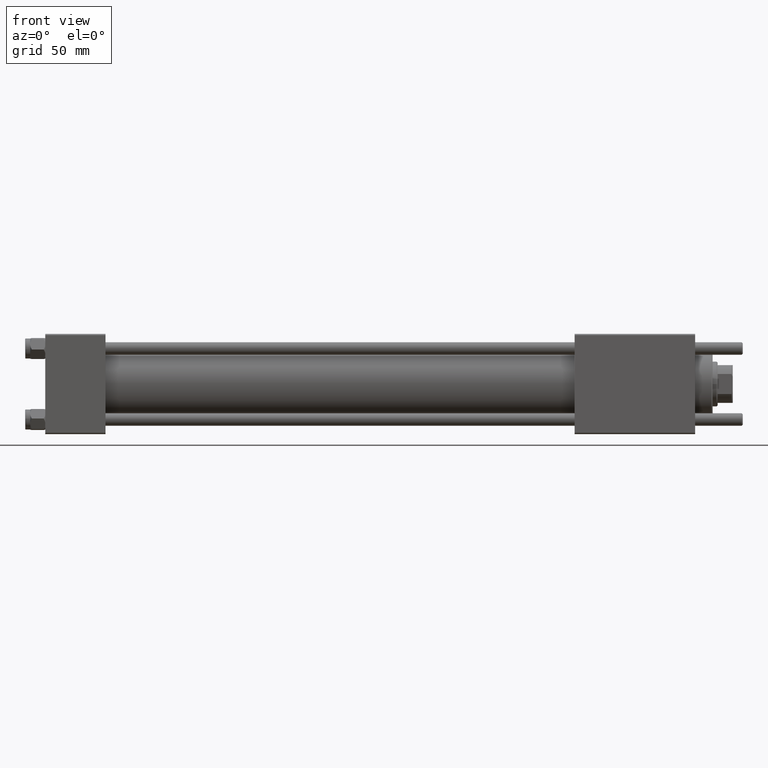
[diagram: clean part render]
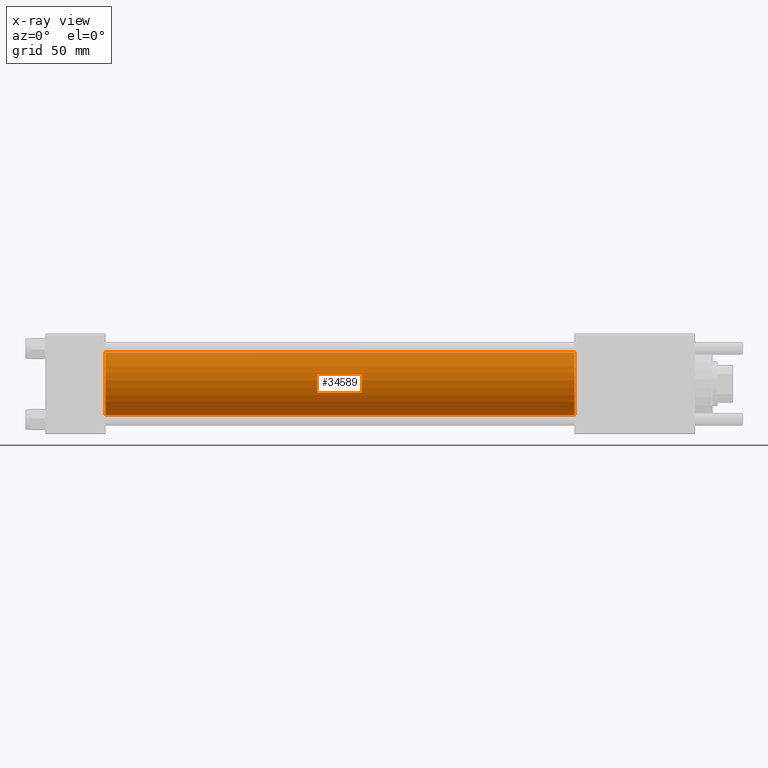
[diagram: x-ray — body ghosted, one internal face saturated and labeled with its STEP entity id]
A machine part, front view, then the same camera in x-ray: the body is ghosted and one INTERNAL B-rep face — a face not visible from any outside direction — is saturated and labeled: STEP entity #34589.
In plain terms, the highlighted cylindrical surface (edge-blend (fillet) strip) has radius 12.5 mm, axis along (-1, -0, -0).
Its self-contained STEP definition (entity closure, byte-faithful):
#1532 = VERTEX_POINT ( 'NONE', #33954 ) ;
#8675 = EDGE_CURVE ( 'NONE', #32296, #11196, #25250, .T. ) ;
#9505 = CARTESIAN_POINT ( 'NONE',  ( 211.0000000000000000, -2.602085213965210642E-15, 12.49999999999999645 ) ) ;
#9685 = AXIS2_PLACEMENT_3D ( 'NONE', #33429, #29130, #50910 ) ;
#11171 = LINE ( 'NONE', #49894, #37004 ) ;
#11187 = EDGE_CURVE ( 'NONE', #47781, #32296, #40188, .T. ) ;
#11196 = VERTEX_POINT ( 'NONE', #35886 ) ;
#11231 = ORIENTED_EDGE ( 'NONE', *, *, #55899, .T. ) ;
#11595 = DIRECTION ( 'NONE',  ( 0.000000000000000000, 0.000000000000000000, -1.000000000000000000 ) ) ;
#13068 = DIRECTION ( 'NONE',  ( 0.000000000000000000, 0.000000000000000000, 1.000000000000000000 ) ) ;
#13358 = CYLINDRICAL_SURFACE ( 'NONE', #21760, 12.49999999999999645 ) ;
#14168 = ORIENTED_EDGE ( 'NONE', *, *, #11187, .F. ) ;
#14223 = CIRCLE ( 'NONE', #51796, 12.49999999999999645 ) ;
#19782 = DIRECTION ( 'NONE',  ( -1.000000000000000000, -0.000000000000000000, -0.000000000000000000 ) ) ;
#21760 = AXIS2_PLACEMENT_3D ( 'NONE', #26285, #34593, #13068 ) ;
#23583 = EDGE_CURVE ( 'NONE', #1532, #11196, #11171, .T. ) ;
#25250 = CIRCLE ( 'NONE', #9685, 12.49999999999999645 ) ;
#26285 = CARTESIAN_POINT ( 'NONE',  ( 211.0000000000000000, -2.602085213965210642E-15, 0.000000000000000000 ) ) ;
#26723 = DIRECTION ( 'NONE',  ( -1.000000000000000000, -0.000000000000000000, -0.000000000000000000 ) ) ;
#29014 = CARTESIAN_POINT ( 'NONE',  ( 24.00000000000000000, -2.602085213965210642E-15, 12.49999999999999645 ) ) ;
#29130 = DIRECTION ( 'NONE',  ( 1.000000000000000000, 0.000000000000000000, 0.000000000000000000 ) ) ;
#31605 = ORIENTED_EDGE ( 'NONE', *, *, #23583, .T. ) ;
#32296 = VERTEX_POINT ( 'NONE', #29014 ) ;
#33391 = CARTESIAN_POINT ( 'NONE',  ( 211.0000000000000000, -2.602085213965210642E-15, 0.000000000000000000 ) ) ;
#33429 = CARTESIAN_POINT ( 'NONE',  ( 24.00000000000000000, -2.602085213965210642E-15, 0.000000000000000000 ) ) ;
#33954 = CARTESIAN_POINT ( 'NONE',  ( 211.0000000000000000, -1.071276715031019515E-15, -12.49999999999999645 ) ) ;
#34589 = ADVANCED_FACE ( 'NONE', ( #56098 ), #13358, .F. ) ;
#34593 = DIRECTION ( 'NONE',  ( -1.000000000000000000, -0.000000000000000000, -0.000000000000000000 ) ) ;
#35886 = CARTESIAN_POINT ( 'NONE',  ( 24.00000000000000000, -1.071276715031019515E-15, -12.49999999999999645 ) ) ;
#37004 = VECTOR ( 'NONE', #19782, 1000.000000000000000 ) ;
#38577 = ORIENTED_EDGE ( 'NONE', *, *, #8675, .F. ) ;
#40188 = LINE ( 'NONE', #9505, #54647 ) ;
#47781 = VERTEX_POINT ( 'NONE', #55122 ) ;
#49894 = CARTESIAN_POINT ( 'NONE',  ( 211.0000000000000000, -1.071276715031019515E-15, -12.49999999999999645 ) ) ;
#50869 = DIRECTION ( 'NONE',  ( 1.000000000000000000, 0.000000000000000000, 0.000000000000000000 ) ) ;
#50910 = DIRECTION ( 'NONE',  ( 0.000000000000000000, 0.000000000000000000, -1.000000000000000000 ) ) ;
#51669 = EDGE_LOOP ( 'NONE', ( #11231, #31605, #38577, #14168 ) ) ;
#51796 = AXIS2_PLACEMENT_3D ( 'NONE', #33391, #50869, #11595 ) ;
#54647 = VECTOR ( 'NONE', #26723, 1000.000000000000000 ) ;
#55122 = CARTESIAN_POINT ( 'NONE',  ( 211.0000000000000000, -2.602085213965210642E-15, 12.49999999999999645 ) ) ;
#55899 = EDGE_CURVE ( 'NONE', #47781, #1532, #14223, .T. ) ;
#56098 = FACE_OUTER_BOUND ( 'NONE', #51669, .T. ) ;